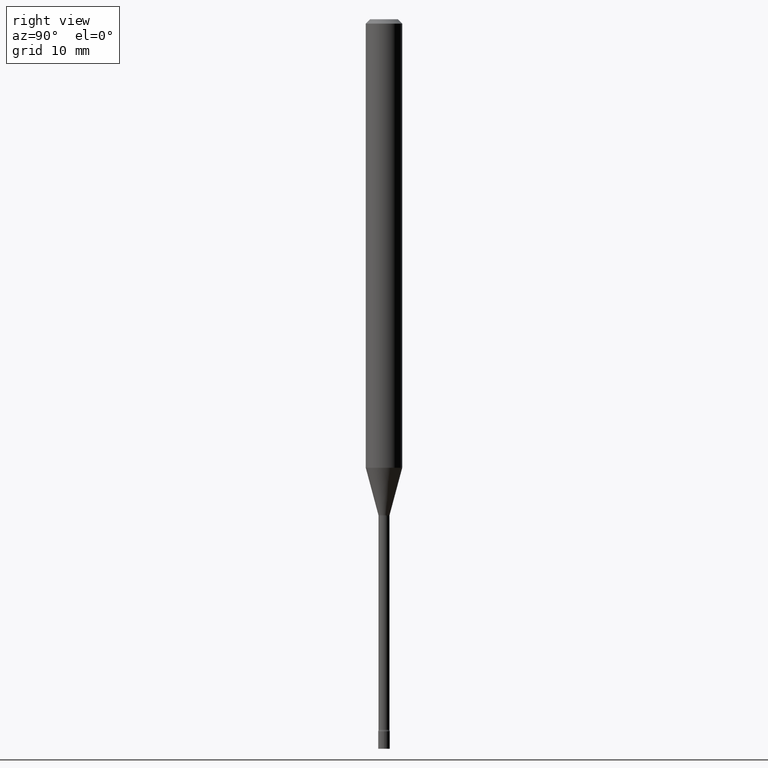
[diagram: clean part render]
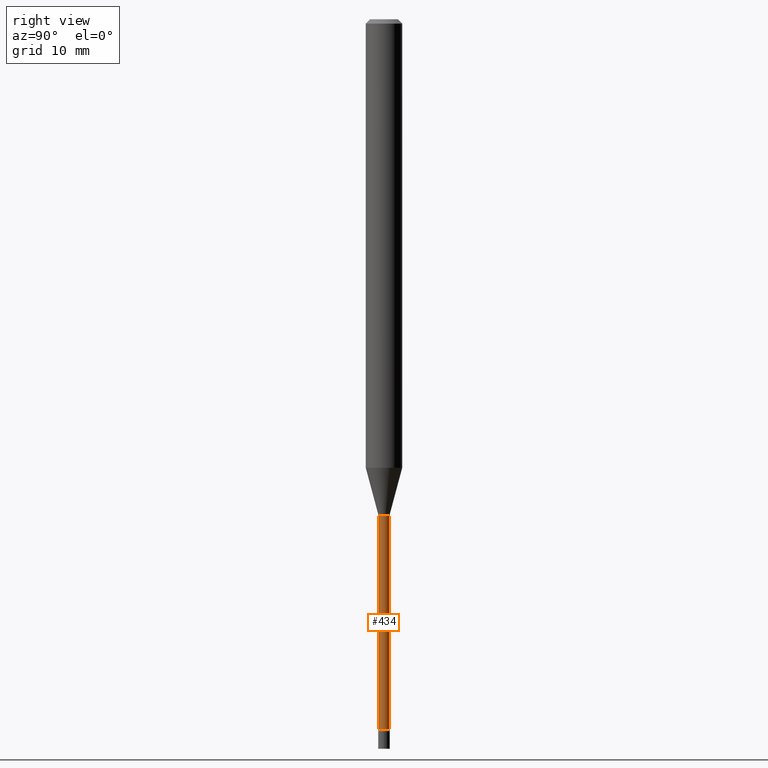
[diagram: same view with one face highlighted and labeled with its STEP entity id]
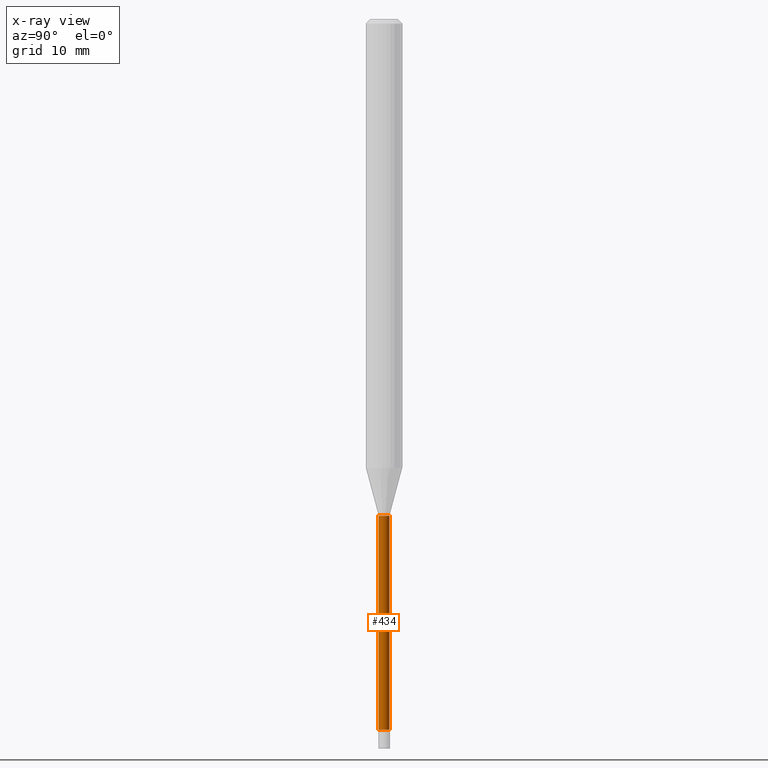
[diagram: x-ray of the same camera — body ghosted, the highlighted face saturated]
A machine part, right view. The second image highlights one B-rep face of the part: STEP entity #434.
The next image is the same camera in x-ray: the body ghosted, the highlighted face saturated — about 0% of this face is hidden behind the body in this view.
In plain terms, the highlighted cylindrical surface (edge-blend (fillet) strip) has radius 0.4775 mm, axis along (-0, 0, 1).
Its self-contained STEP definition (entity closure, byte-faithful):
#6 = ORIENTED_EDGE ( 'NONE', *, *, #44, .F. ) ;
#14 = CARTESIAN_POINT ( 'NONE',  ( -1.312796983404428095E-16, -0.01880000000000857374, -2.434121224617320944 ) ) ;
#15 = CARTESIAN_POINT ( 'NONE',  ( 5.952459966126715215E-29, -8.498842863055376758E-15, -2.434121224617320944 ) ) ;
#44 = EDGE_CURVE ( 'NONE', #231, #196, #460, .T. ) ;
#46 = DIRECTION ( 'NONE',  ( -2.445424618103204141E-29, 3.491544618691502502E-15, 1.000000000000000000 ) ) ;
#59 = CIRCLE ( 'NONE', #269, 0.01880000000000007360 ) ;
#64 = CARTESIAN_POINT ( 'NONE',  ( 1.335820343229586211E-16, 0.01879999999999405758, -1.701974787463810923 ) ) ;
#84 = DIRECTION ( 'NONE',  ( -6.982962677686265922E-15, -1.000000000000000000, 0.000000000000000000 ) ) ;
#87 = DIRECTION ( 'NONE',  ( -2.445424618103204141E-29, 3.491544618691502896E-15, 1.000000000000000000 ) ) ;
#91 = EDGE_LOOP ( 'NONE', ( #437, #386, #6, #150 ) ) ;
#113 = VERTEX_POINT ( 'NONE', #14 ) ;
#114 = CARTESIAN_POINT ( 'NONE',  ( -1.312796983404601891E-16, -0.01880000000000594043, -1.701974787463810923 ) ) ;
#129 = LINE ( 'NONE', #338, #145 ) ;
#130 = EDGE_CURVE ( 'NONE', #368, #196, #129, .T. ) ;
#145 = VECTOR ( 'NONE', #214, 39.37007874015748143 ) ;
#150 = ORIENTED_EDGE ( 'NONE', *, *, #274, .F. ) ;
#178 = CARTESIAN_POINT ( 'NONE',  ( 1.378452907375191717E-16, 0.01879999999999157692, -2.434121224617320944 ) ) ;
#196 = VERTEX_POINT ( 'NONE', #64 ) ;
#214 = DIRECTION ( 'NONE',  ( -2.445424618103204141E-29, 3.491544618691502896E-15, 1.000000000000000000 ) ) ;
#231 = VERTEX_POINT ( 'NONE', #114 ) ;
#248 = VECTOR ( 'NONE', #87, 39.37007874015748143 ) ;
#251 = DIRECTION ( 'NONE',  ( -6.982962677686265922E-15, -1.000000000000000000, 0.000000000000000000 ) ) ;
#269 = AXIS2_PLACEMENT_3D ( 'NONE', #15, #493, #251 ) ;
#274 = EDGE_CURVE ( 'NONE', #113, #231, #283, .T. ) ;
#281 = CARTESIAN_POINT ( 'NONE',  ( 4.162051044654971731E-29, -5.942520910317883342E-15, -1.701974787463810923 ) ) ;
#283 = LINE ( 'NONE', #441, #248 ) ;
#287 = DIRECTION ( 'NONE',  ( -6.982962677686267499E-15, -1.000000000000000000, 3.491544618691502896E-15 ) ) ;
#308 = EDGE_CURVE ( 'NONE', #113, #368, #59, .T. ) ;
#338 = CARTESIAN_POINT ( 'NONE',  ( 1.335820343228990867E-16, 0.01880000000000003543, -6.564103883140037808E-17 ) ) ;
#365 = CYLINDRICAL_SURFACE ( 'NONE', #442, 0.01880000000000003543 ) ;
#368 = VERTEX_POINT ( 'NONE', #178 ) ;
#386 = ORIENTED_EDGE ( 'NONE', *, *, #130, .T. ) ;
#434 = ADVANCED_FACE ( 'NONE', ( #444 ), #365, .T. ) ;
#437 = ORIENTED_EDGE ( 'NONE', *, *, #308, .T. ) ;
#440 = DIRECTION ( 'NONE',  ( -2.445424618103204141E-29, 3.491544618691502502E-15, 1.000000000000000000 ) ) ;
#441 = CARTESIAN_POINT ( 'NONE',  ( -1.312796983405020727E-16, -0.01880000000000003543, 6.564103883140037808E-17 ) ) ;
#442 = AXIS2_PLACEMENT_3D ( 'NONE', #507, #46, #287 ) ;
#444 = FACE_OUTER_BOUND ( 'NONE', #91, .T. ) ;
#460 = CIRCLE ( 'NONE', #508, 0.01880000000000000074 ) ;
#493 = DIRECTION ( 'NONE',  ( -2.445424618103204141E-29, 3.491544618691502502E-15, 1.000000000000000000 ) ) ;
#507 = CARTESIAN_POINT ( 'NONE',  ( 0.000000000000000000, 0.000000000000000000, 0.000000000000000000 ) ) ;
#508 = AXIS2_PLACEMENT_3D ( 'NONE', #281, #440, #84 ) ;